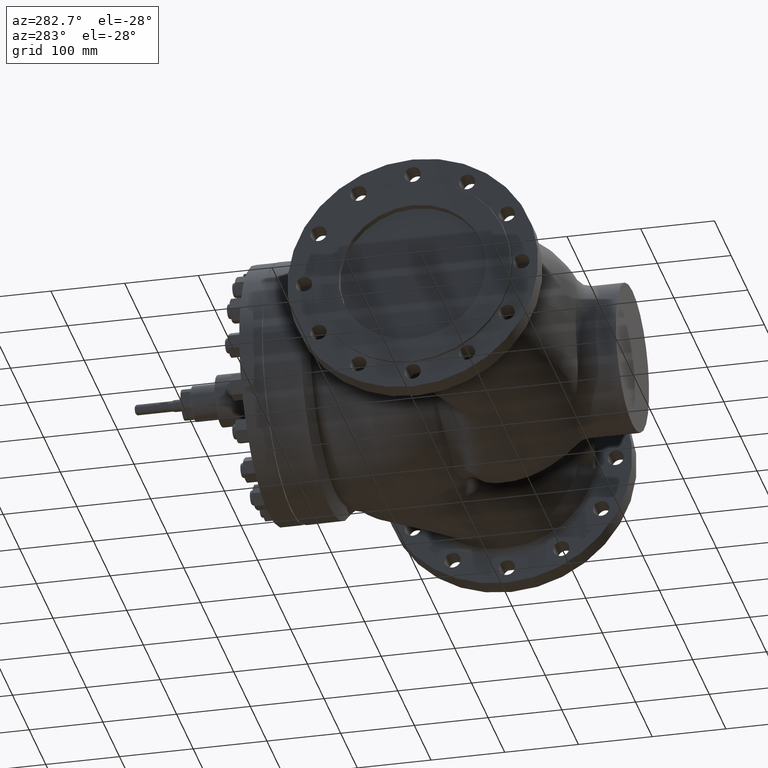
[diagram: clean part render]
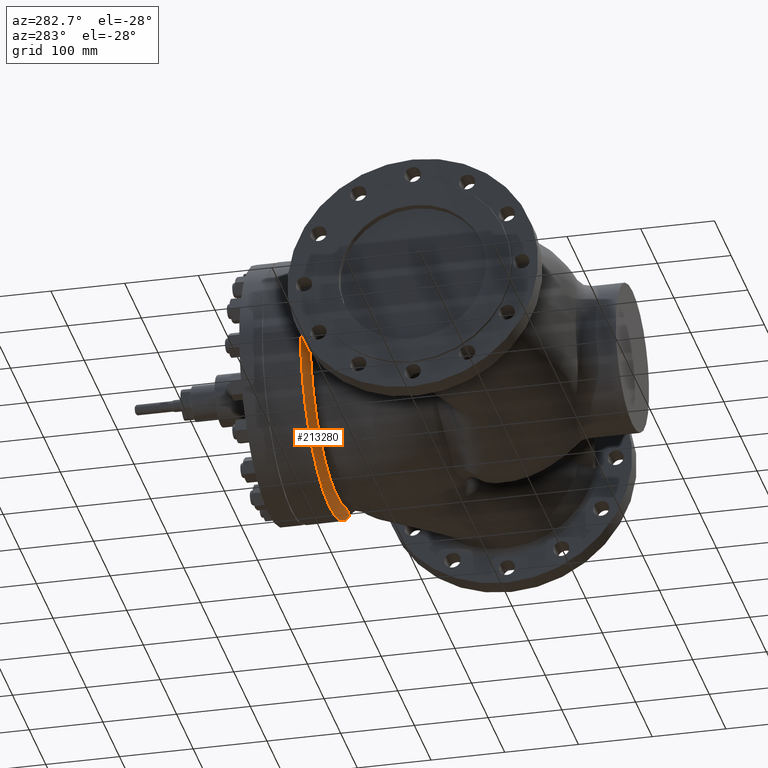
[diagram: same view with one face highlighted and labeled with its STEP entity id]
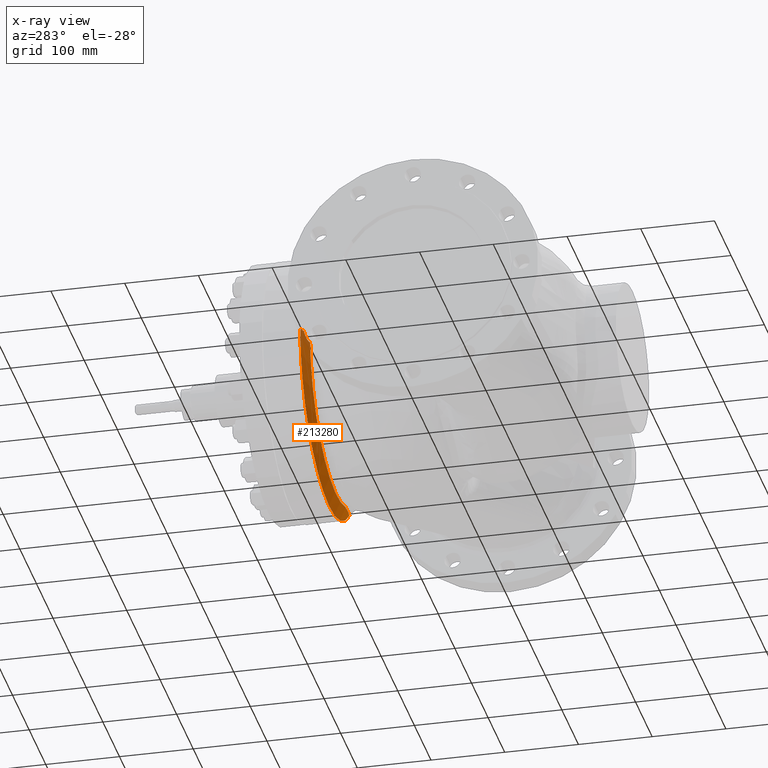
[diagram: x-ray of the same camera — body ghosted, the highlighted face saturated]
A machine part, auxiliary view. The second image highlights one B-rep face of the part: STEP entity #213280.
The next image is the same camera in x-ray: the body ghosted, the highlighted face saturated — about 4% of this face is hidden behind the body in this view.
In plain terms, the highlighted conical surface has half-angle 60 deg.
Its self-contained STEP definition (entity closure, byte-faithful):
#5258 = CARTESIAN_POINT ( 'NONE',  ( 118.0966999834170300, 179.6321285574935900, -128.0195830811644000 ) ) ;
#6199 = CARTESIAN_POINT ( 'NONE',  ( 55.99376762319951000, 170.6132503900070700, -148.3286216669258700 ) ) ;
#6890 = CARTESIAN_POINT ( 'NONE',  ( -165.9184909323664100, 174.9516825663349400, -6.957484560123019100 ) ) ;
#8366 = VECTOR ( 'NONE', #14734, 1000.000000000000200 ) ;
#11525 = DIRECTION ( 'NONE',  ( -9.659489317033374300E-017, 1.000000000000000000, -0.0000000000000000000 ) ) ;
#13621 = AXIS2_PLACEMENT_3D ( 'NONE', #18155, #61536, #40324 ) ;
#14734 = DIRECTION ( 'NONE',  ( -0.8660254037844404800, 0.4999999999999968900, 0.0000000000000000000 ) ) ;
#16685 = ORIENTED_EDGE ( 'NONE', *, *, #128802, .T. ) ;
#18155 = CARTESIAN_POINT ( 'NONE',  ( 1.444572414257767000E-014, 180.1132486540518600, 0.0000000000000000000 ) ) ;
#27419 = CARTESIAN_POINT ( 'NONE',  ( 115.5014124245922600, 179.1151288241910600, -129.1618407869833000 ) ) ;
#28116 = CARTESIAN_POINT ( 'NONE',  ( -158.7108017260364600, 170.9930130046221000, -12.51424358105429700 ) ) ;
#29055 = CARTESIAN_POINT ( 'NONE',  ( -167.5936694070011900, 175.8586661364549600, -3.598311525314564100 ) ) ;
#29818 = VERTEX_POINT ( 'NONE', #128460 ) ;
#35773 = CARTESIAN_POINT ( 'NONE',  ( -168.8924395096883000, 176.5870469608785800, 3.081487911019577400E-030 ) ) ;
#40279 = CARTESIAN_POINT ( 'NONE',  ( 120.6566394702029800, 180.1132486540518600, -126.7555732571844200 ) ) ;
#40324 = DIRECTION ( 'NONE',  ( -1.000000000000000000, -1.586032892321652700E-016, 0.0000000000000000000 ) ) ;
#49605 = CARTESIAN_POINT ( 'NONE',  ( 113.5394416946957500, 178.7126379096026200, -129.9655678698425400 ) ) ;
#50301 = CARTESIAN_POINT ( 'NONE',  ( -159.3628416215522900, 171.3589718059821200, -12.30840958985822400 ) ) ;
#51257 = CARTESIAN_POINT ( 'NONE',  ( -168.2714291757457400, 176.2339086051945600, -1.810818559567160200 ) ) ;
#61536 = DIRECTION ( 'NONE',  ( -9.659489317033374300E-017, 1.000000000000000000, -0.0000000000000000000 ) ) ;
#66936 = LINE ( 'NONE', #213333, #8366 ) ;
#71751 = CARTESIAN_POINT ( 'NONE',  ( 107.6144956584165400, 177.5093377635319300, -132.2615868612520300 ) ) ;
#72454 = CARTESIAN_POINT ( 'NONE',  ( -161.2467640786694300, 172.4067151243566800, -11.44551966032718800 ) ) ;
#73406 = CARTESIAN_POINT ( 'NONE',  ( -168.5858005787402500, 176.4113608334851300, -0.9068853780711582100 ) ) ;
#77283 = B_SPLINE_CURVE_WITH_KNOTS ( 'NONE', 3,
 ( #160159, #28116, #50301, #204551, #72454, #226717, #94614, #248864, #116769, #271055, #138932, #6890, #161103, #29055, #183327, #51257, #205506, #73406, #227679, #95571, #249826, #117720 ),
 .UNSPECIFIED., .F., .F.,
 ( 4, 2, 2, 2, 2, 2, 2, 2, 2, 2, 4 ),
 ( 4.108768631691174000E-017, 0.002319131419722274200, 0.004638262839444506700, 0.006957394259166738800, 0.008116959969027840600, 0.009276525678888942300, 0.01391478851833331100, 0.01623391993805548700, 0.01739348564791656800, 0.01797326850284711500, 0.01855305135777766300 ),
 .UNSPECIFIED. ) ;
#78028 = ORIENTED_EDGE ( 'NONE', *, *, #215385, .T. ) ;
#78809 = CARTESIAN_POINT ( 'NONE',  ( -158.0396101130116600, 170.6132503900070400, -12.65557796302297800 ) ) ;
#80349 = ORIENTED_EDGE ( 'NONE', *, *, #133745, .F. ) ;
#82034 = AXIS2_PLACEMENT_3D ( 'NONE', #143535, #11525, #165753 ) ;
#82439 = VERTEX_POINT ( 'NONE', #78809 ) ;
#89682 = VERTEX_POINT ( 'NONE', #35773 ) ;
#93925 = CARTESIAN_POINT ( 'NONE',  ( 99.63675577654886700, 175.9966193204578200, -135.1300863499432400 ) ) ;
#94614 = CARTESIAN_POINT ( 'NONE',  ( -162.9958857009541500, 173.3671375096046700, -10.22395724172206000 ) ) ;
#95571 = CARTESIAN_POINT ( 'NONE',  ( -168.7704111506161000, 176.5167626719241400, -0.3628620065862364600 ) ) ;
#107204 = EDGE_CURVE ( 'NONE', #82439, #89682, #77283, .T. ) ;
#111880 = CIRCLE ( 'NONE', #82034, 158.5455203348580800 ) ;
#113224 = CARTESIAN_POINT ( 'NONE',  ( 119.3824833450034100, 179.8787520933890400, -127.4076740017986100 ) ) ;
#116067 = CARTESIAN_POINT ( 'NONE',  ( 91.59117433364058100, 174.6200824495822400, -137.8552076099651900 ) ) ;
#116769 = CARTESIAN_POINT ( 'NONE',  ( -164.0400406315290800, 173.9352545005841600, -9.232410846504578200 ) ) ;
#117720 = CARTESIAN_POINT ( 'NONE',  ( -168.8924395096883000, 176.5870469608785800, 3.081487911019577400E-030 ) ) ;
#123686 = VERTEX_POINT ( 'NONE', #40279 ) ;
#126756 = CARTESIAN_POINT ( 'NONE',  ( 1.444572414257767000E-014, 180.1132486540518600, 0.0000000000000000000 ) ) ;
#127887 = EDGE_CURVE ( 'NONE', #89682, #249304, #66936, .T. ) ;
#128460 = CARTESIAN_POINT ( 'NONE',  ( 55.99376762319951000, 170.6132503900070700, -148.3286216669258700 ) ) ;
#128802 = EDGE_CURVE ( 'NONE', #123686, #29818, #254559, .T. ) ;
#130712 = CARTESIAN_POINT ( 'NONE',  ( -174.9999999999999400, 180.1132486540518300, 0.0000000000000000000 ) ) ;
#133745 = EDGE_CURVE ( 'NONE', #123686, #249304, #259556, .T. ) ;
#138235 = CARTESIAN_POINT ( 'NONE',  ( 67.12395475852311200, 171.2986394049717900, -145.3958957636275200 ) ) ;
#138932 = CARTESIAN_POINT ( 'NONE',  ( -164.7721955990458300, 174.3319933432050600, -8.413309450119626800 ) ) ;
#143139 = CONICAL_SURFACE ( 'NONE', #13621, 174.9999999999999400, 1.047197551196601200 ) ;
#143535 = CARTESIAN_POINT ( 'NONE',  ( 1.536337546001143100E-014, 170.6132503900070700, 0.0000000000000000000 ) ) ;
#148919 = DIRECTION ( 'NONE',  ( -1.000000000000000000, -1.586032892321652700E-016, 0.0000000000000000000 ) ) ;
#159454 = CARTESIAN_POINT ( 'NONE',  ( 116.1521843387986200, 179.2463015790518700, -128.8829680891550700 ) ) ;
#160159 = CARTESIAN_POINT ( 'NONE',  ( -158.0396101130116600, 170.6132503900070400, -12.65557796302297800 ) ) ;
#161103 = CARTESIAN_POINT ( 'NONE',  ( -166.6594258978300000, 175.3500169713460900, -5.664386469825565500 ) ) ;
#165753 = DIRECTION ( 'NONE',  ( -1.000000000000000000, -1.750637643814053900E-016, 0.0000000000000000000 ) ) ;
#181675 = CARTESIAN_POINT ( 'NONE',  ( 114.1951568176921800, 178.8485400818452700, -129.7035945701195200 ) ) ;
#183327 = CARTESIAN_POINT ( 'NONE',  ( -167.8761674046171200, 176.0137446950024900, -2.887579978270588700 ) ) ;
#193229 = EDGE_LOOP ( 'NONE', ( #197320, #222443, #80349, #16685, #78028 ) ) ;
#197320 = ORIENTED_EDGE ( 'NONE', *, *, #107204, .T. ) ;
#203852 = CARTESIAN_POINT ( 'NONE',  ( 110.2559347188312100, 178.0365938583632600, -131.2621798082957400 ) ) ;
#204551 = CARTESIAN_POINT ( 'NONE',  ( -160.6302000999214100, 172.0654838808009400, -11.77449360852457100 ) ) ;
#205506 = CARTESIAN_POINT ( 'NONE',  ( -168.3986582606420900, 176.3053400840213400, -1.449870413294674700 ) ) ;
#208778 = FACE_OUTER_BOUND ( 'NONE', #193229, .T. ) ;
#213280 = ADVANCED_FACE ( 'NONE', ( #208778 ), #143139, .T. ) ;
#213333 = CARTESIAN_POINT ( 'NONE',  ( -174.9999999999999100, 180.1132486540518300, 0.0000000000000000000 ) ) ;
#215385 = EDGE_CURVE ( 'NONE', #29818, #82439, #111880, .T. ) ;
#222443 = ORIENTED_EDGE ( 'NONE', *, *, #127887, .T. ) ;
#226017 = CARTESIAN_POINT ( 'NONE',  ( 102.3049812865150300, 176.4895287773420600, -134.1958437432447500 ) ) ;
#226717 = CARTESIAN_POINT ( 'NONE',  ( -162.4364412889627000, 173.0612916837473600, -10.66562947614615500 ) ) ;
#227679 = CARTESIAN_POINT ( 'NONE',  ( -168.6475671725625000, 176.4465146920684600, -0.7256311467421149300 ) ) ;
#248172 = CARTESIAN_POINT ( 'NONE',  ( 94.28025705956531500, 175.0627554316958200, -136.9613598998501800 ) ) ;
#248864 = CARTESIAN_POINT ( 'NONE',  ( -163.7852540003853200, 173.7968712207730600, -9.489349775598622500 ) ) ;
#249304 = VERTEX_POINT ( 'NONE', #130712 ) ;
#249826 = CARTESIAN_POINT ( 'NONE',  ( -168.8318848750798200, 176.5520857262866900, -0.1801683761547115400 ) ) ;
#254559 = B_SPLINE_CURVE_WITH_KNOTS ( 'NONE', 3,
 ( #269427, #113224, #5258, #159454, #27419, #181675, #49605, #203852, #71751, #226017, #93925, #248172, #116067, #270369, #138235, #6199 ),
 .UNSPECIFIED., .F., .F.,
 ( 4, 2, 2, 2, 2, 2, 2, 4 ),
 ( 1.387778780781445700E-017, 0.004301586453442077800, 0.006452379680163144000, 0.008603172906884211000, 0.01720634581376853000, 0.02580951872065284600, 0.03441269162753717000, 0.06882538325507452100 ),
 .UNSPECIFIED. ) ;
#259556 = CIRCLE ( 'NONE', #263570, 174.9999999999999400 ) ;
#263570 = AXIS2_PLACEMENT_3D ( 'NONE', #126756, #281072, #148919 ) ;
#269427 = CARTESIAN_POINT ( 'NONE',  ( 120.6566394702029800, 180.1132486540518600, -126.7555732571844200 ) ) ;
#270369 = CARTESIAN_POINT ( 'NONE',  ( 78.09257787836132500, 172.5388641502986800, -142.2232290483104900 ) ) ;
#271055 = CARTESIAN_POINT ( 'NONE',  ( -164.5331670792720900, 174.2026296079400000, -8.694839461280706100 ) ) ;
#281072 = DIRECTION ( 'NONE',  ( -9.659489317033374300E-017, 1.000000000000000000, -0.0000000000000000000 ) ) ;